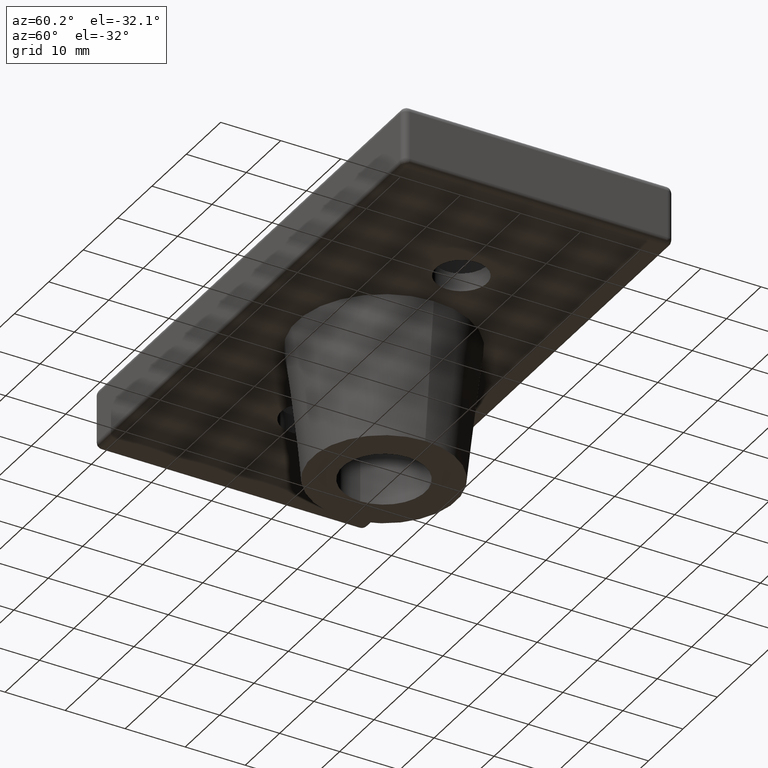
[diagram: clean part render]
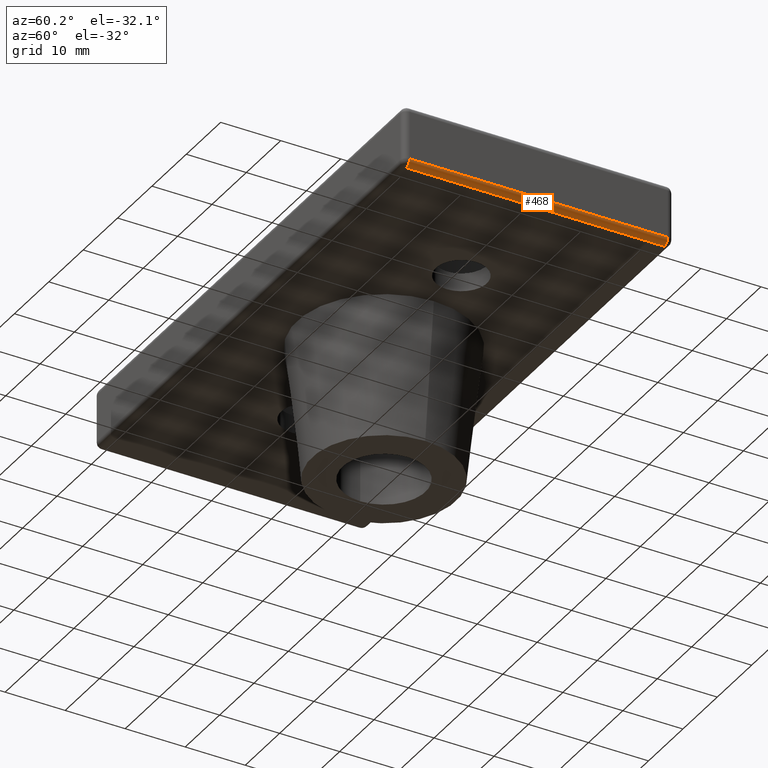
[diagram: same view with one face highlighted and labeled with its STEP entity id]
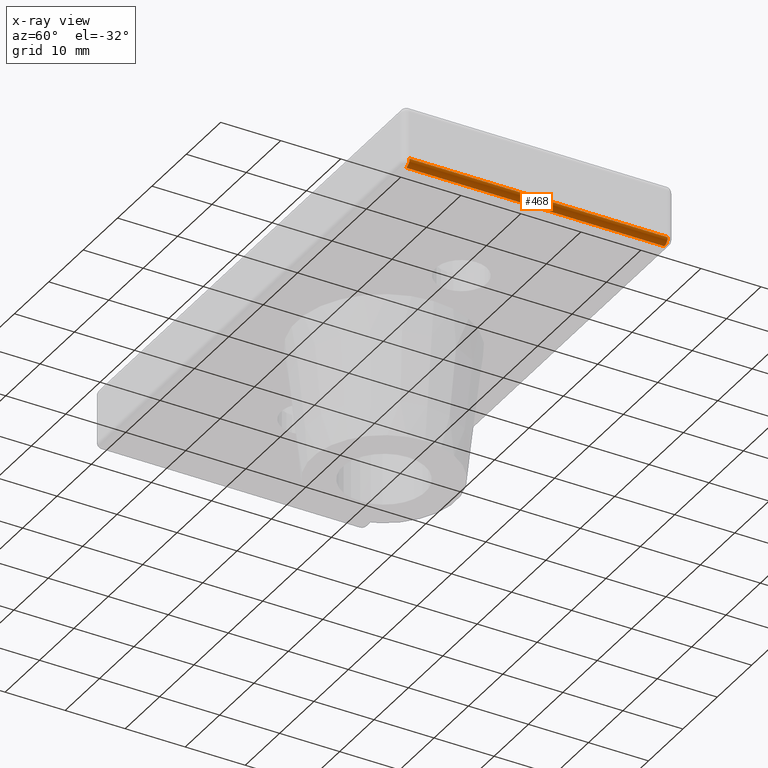
[diagram: x-ray of the same camera — body ghosted, the highlighted face saturated]
A machine part, auxiliary view. The second image highlights one B-rep face of the part: STEP entity #468.
The next image is the same camera in x-ray: the body ghosted, the highlighted face saturated — about 0% of this face is hidden behind the body in this view.
In plain terms, the highlighted cylindrical surface (edge-blend (fillet) strip) has radius 1 mm, axis along (0, 1, 0).
Its self-contained STEP definition (entity closure, byte-faithful):
#29=LINE('',#774,#53);
#42=LINE('',#802,#66);
#53=VECTOR('',#608,43.);
#66=VECTOR('',#627,43.);
#114=FACE_OUTER_BOUND('',#164,.T.);
#164=EDGE_LOOP('',(#371,#372,#373,#374));
#195=CIRCLE('',#518,1.);
#199=CIRCLE('',#524,1.);
#235=VERTEX_POINT('',#771);
#236=VERTEX_POINT('',#773);
#245=VERTEX_POINT('',#795);
#248=VERTEX_POINT('',#800);
#271=EDGE_CURVE('',#235,#236,#29,.T.);
#284=EDGE_CURVE('',#248,#245,#42,.T.);
#291=EDGE_CURVE('',#248,#236,#195,.T.);
#295=EDGE_CURVE('',#245,#235,#199,.T.);
#371=ORIENTED_EDGE('',*,*,#291,.T.);
#372=ORIENTED_EDGE('',*,*,#271,.F.);
#373=ORIENTED_EDGE('',*,*,#295,.F.);
#374=ORIENTED_EDGE('',*,*,#284,.F.);
#439=CYLINDRICAL_SURFACE('',#523,1.);
#468=ADVANCED_FACE('',(#114),#439,.T.);
#518=AXIS2_PLACEMENT_3D('',#818,#646,#647);
#523=AXIS2_PLACEMENT_3D('',#823,#656,#657);
#524=AXIS2_PLACEMENT_3D('',#824,#658,#659);
#608=DIRECTION('',(0.,1.,0.));
#627=DIRECTION('',(0.,-1.,0.));
#646=DIRECTION('center_axis',(0.,-1.,0.));
#647=DIRECTION('ref_axis',(0.,0.,1.));
#656=DIRECTION('center_axis',(0.,1.,0.));
#657=DIRECTION('ref_axis',(-1.,0.,0.));
#658=DIRECTION('center_axis',(0.,-1.,0.));
#659=DIRECTION('ref_axis',(0.,0.,-1.));
#771=CARTESIAN_POINT('',(0.29289321881345,-21.5,0.707106781186548));
#773=CARTESIAN_POINT('',(0.292893218813493,21.5,0.707106781186548));
#774=CARTESIAN_POINT('',(0.29289321881345,-21.5,0.707106781186548));
#795=CARTESIAN_POINT('',(-0.707106781186549,-21.5,-0.292893218813451));
#800=CARTESIAN_POINT('',(-0.707106781186493,21.5,-0.292893218318756));
#802=CARTESIAN_POINT('',(-0.70710678118655,21.5,-0.292893218813449));
#818=CARTESIAN_POINT('Origin',(-0.707106781186493,21.5,0.707106781186548));
#823=CARTESIAN_POINT('Origin',(-0.70710678118655,-21.50000001,0.707106781186548));
#824=CARTESIAN_POINT('Origin',(-0.70710678118655,-21.5,0.707106781186548));